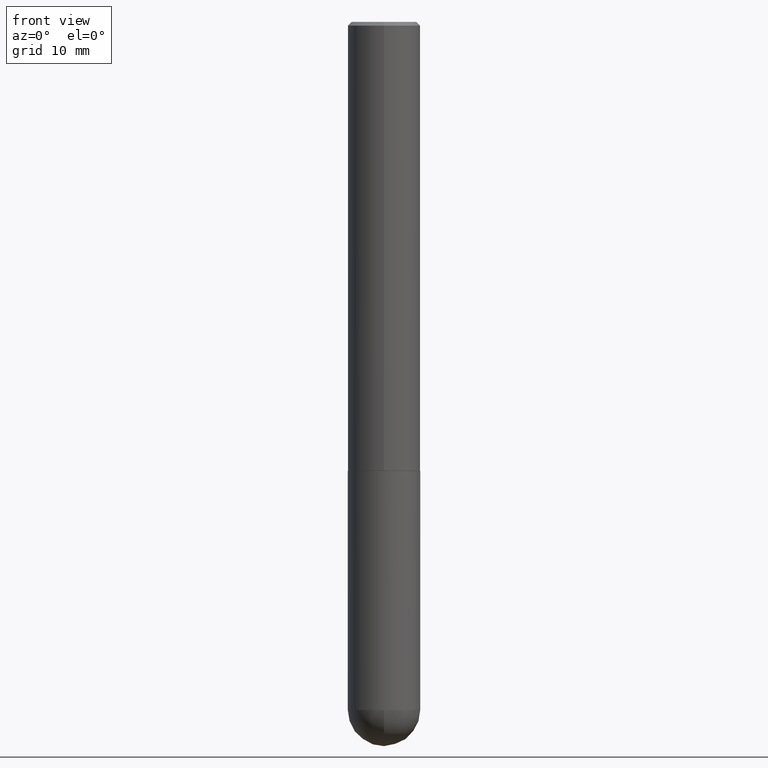
[diagram: clean part render]
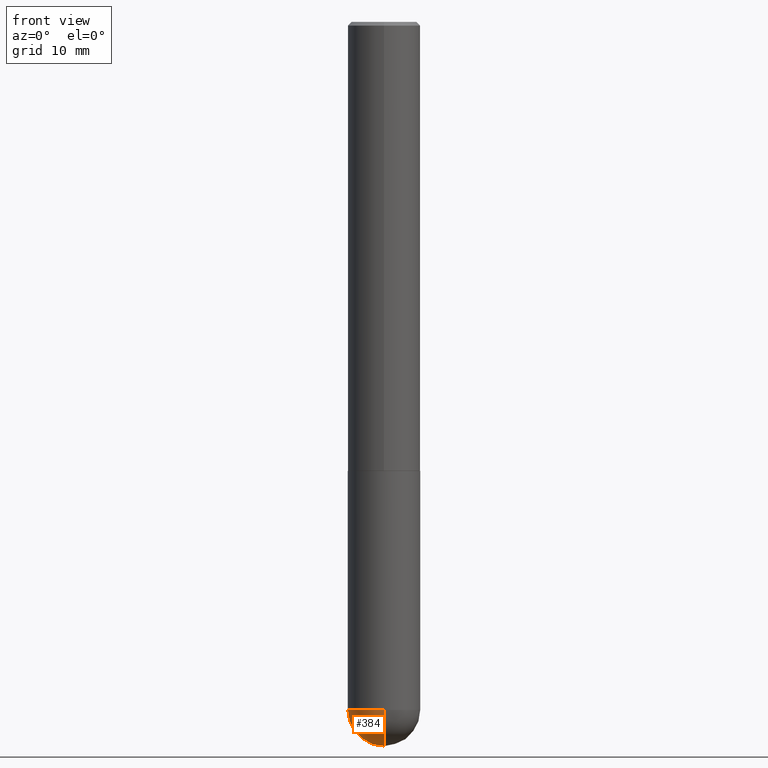
[diagram: same view with one face highlighted and labeled with its STEP entity id]
A machine part, front view. The second image highlights one B-rep face of the part: STEP entity #384.
In plain terms, the highlighted spherical surface has radius 5 mm.
Its self-contained STEP definition (entity closure, byte-faithful):
#6 = ORIENTED_EDGE ( 'NONE', *, *, #147, .F. ) ;
#30 = CARTESIAN_POINT ( 'NONE',  ( -0.1968499999999999694, -9.391806989384456184E-15, -3.740150000000000752 ) ) ;
#46 = DIRECTION ( 'NONE',  ( 6.982962677686265922E-15, 1.000000000000000000, 0.000000000000000000 ) ) ;
#54 = CIRCLE ( 'NONE', #408, 0.1968499999999999694 ) ;
#62 = AXIS2_PLACEMENT_3D ( 'NONE', #272, #154, #277 ) ;
#72 = DIRECTION ( 'NONE',  ( 1.000000000000000000, -6.982962677686269866E-15, 0.000000000000000000 ) ) ;
#77 = EDGE_CURVE ( 'NONE', #234, #330, #228, .T. ) ;
#115 = SPHERICAL_SURFACE ( 'NONE', #210, 0.1968500000000001360 ) ;
#147 = EDGE_CURVE ( 'NONE', #227, #234, #411, .T. ) ;
#154 = DIRECTION ( 'NONE',  ( -1.000000000000000000, 7.105427357601001070E-15, -4.926315508542082329E-29 ) ) ;
#156 = ORIENTED_EDGE ( 'NONE', *, *, #77, .F. ) ;
#158 = ORIENTED_EDGE ( 'NONE', *, *, #347, .T. ) ;
#164 = DIRECTION ( 'NONE',  ( -2.445468806185136597E-29, 3.491481338843145583E-15, 1.000000000000000000 ) ) ;
#195 = DIRECTION ( 'NONE',  ( 6.982962677686265922E-15, 1.000000000000000000, -2.775563112689114723E-15 ) ) ;
#201 = CARTESIAN_POINT ( 'NONE',  ( 8.815300377539453183E-29, -1.353284629761424370E-14, -3.740150000000000308 ) ) ;
#210 = AXIS2_PLACEMENT_3D ( 'NONE', #201, #267, #195 ) ;
#227 = VERTEX_POINT ( 'NONE', #263 ) ;
#228 = CIRCLE ( 'NONE', #291, 0.1968499999999999694 ) ;
#229 = DIRECTION ( 'NONE',  ( -2.445468806185136597E-29, 3.491481338843145583E-15, 1.000000000000000000 ) ) ;
#234 = VERTEX_POINT ( 'NONE', #371 ) ;
#238 = EDGE_LOOP ( 'NONE', ( #6, #158, #254, #156 ) ) ;
#253 = DIRECTION ( 'NONE',  ( 1.000000000000000000, -6.982962677686265922E-15, 4.883557194083112340E-29 ) ) ;
#254 = ORIENTED_EDGE ( 'NONE', *, *, #294, .F. ) ;
#263 = CARTESIAN_POINT ( 'NONE',  ( 9.305107886238245984E-29, -1.420809081304490838E-14, -3.937000000000000721 ) ) ;
#267 = DIRECTION ( 'NONE',  ( -1.000000000000000000, 6.982962677686265922E-15, -4.883557194083113462E-29 ) ) ;
#272 = CARTESIAN_POINT ( 'NONE',  ( 8.815300377539453183E-29, -1.353284629761424370E-14, -3.740150000000000308 ) ) ;
#277 = DIRECTION ( 'NONE',  ( -7.105427357601001070E-15, -1.000000000000000000, 0.000000000000000000 ) ) ;
#280 = CARTESIAN_POINT ( 'NONE',  ( -1.398703375343667858E-15, -0.1968500000000133754, -3.740150000000000308 ) ) ;
#291 = AXIS2_PLACEMENT_3D ( 'NONE', #339, #164, #373 ) ;
#294 = EDGE_CURVE ( 'NONE', #330, #358, #54, .T. ) ;
#302 = AXIS2_PLACEMENT_3D ( 'NONE', #400, #253, #46 ) ;
#330 = VERTEX_POINT ( 'NONE', #30 ) ;
#339 = CARTESIAN_POINT ( 'NONE',  ( 9.146420155453340551E-29, -1.305866392947419340E-14, -3.740150000000000752 ) ) ;
#340 = CARTESIAN_POINT ( 'NONE',  ( 9.146420155453340551E-29, -1.305866392947419340E-14, -3.740150000000000752 ) ) ;
#347 = EDGE_CURVE ( 'NONE', #227, #358, #378, .T. ) ;
#358 = VERTEX_POINT ( 'NONE', #280 ) ;
#362 = FACE_OUTER_BOUND ( 'NONE', #238, .T. ) ;
#371 = CARTESIAN_POINT ( 'NONE',  ( 1.374596203102631736E-15, 0.1968499999999867855, -3.740150000000001196 ) ) ;
#373 = DIRECTION ( 'NONE',  ( 1.000000000000000000, -6.982962677686269866E-15, 0.000000000000000000 ) ) ;
#378 = CIRCLE ( 'NONE', #62, 0.1968500000000001360 ) ;
#384 = ADVANCED_FACE ( 'NONE', ( #362 ), #115, .T. ) ;
#400 = CARTESIAN_POINT ( 'NONE',  ( 8.815300377539453183E-29, -1.353284629761424370E-14, -3.740150000000000308 ) ) ;
#408 = AXIS2_PLACEMENT_3D ( 'NONE', #340, #229, #72 ) ;
#411 = CIRCLE ( 'NONE', #302, 0.1968500000000001360 ) ;